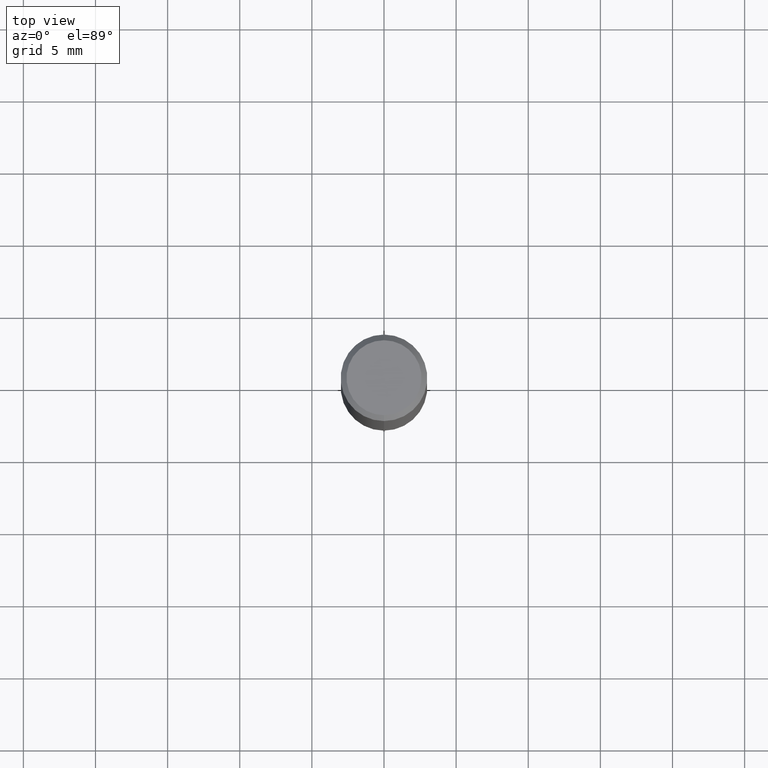
[diagram: clean part render]
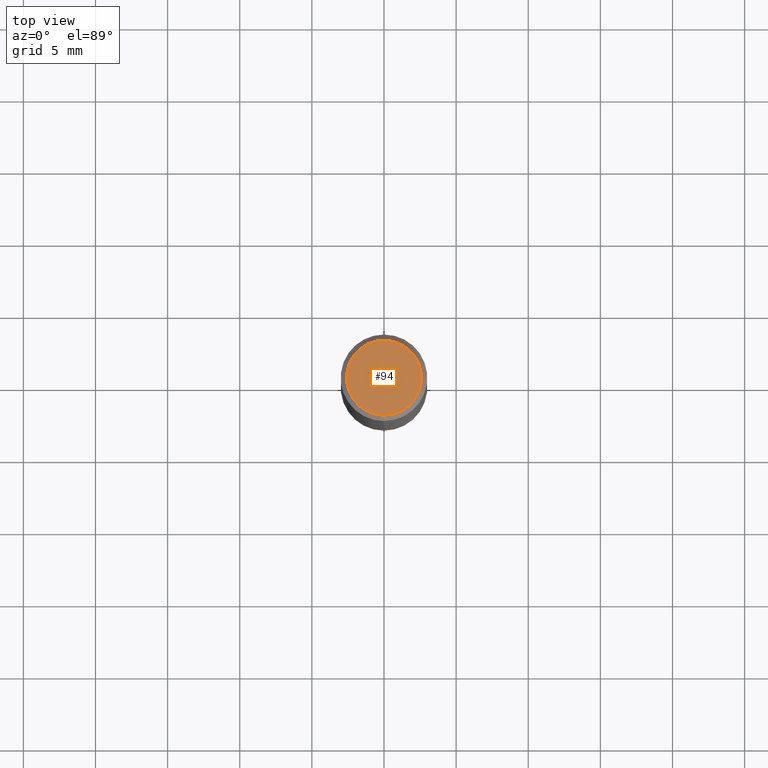
[diagram: same view with one face highlighted and labeled with its STEP entity id]
A machine part, top view. The second image highlights one B-rep face of the part: STEP entity #94.
In plain terms, the highlighted planar face has unit normal (-0, 0, 1).
Its self-contained STEP definition (entity closure, byte-faithful):
#94=ADVANCED_FACE('',(#216),#217,.T.);
#96=EDGE_CURVE('',#146,#104,#219,.T.);
#104=VERTEX_POINT('',#227);
#116=EDGE_CURVE('',#104,#146,#240,.T.);
#146=VERTEX_POINT('',#276);
#216=FACE_OUTER_BOUND('',#343,.T.);
#217=PLANE('',#344);
#219=CIRCLE('',#347,2.6);
#227=CARTESIAN_POINT('',(3.18397651993818E-016,-2.6,0.0));
#240=CIRCLE('',#373,2.6);
#276=CARTESIAN_POINT('',(0.0,2.6,0.0));
#343=EDGE_LOOP('',(#489,#490));
#344=AXIS2_PLACEMENT_3D('',#491,#492,#493);
#347=AXIS2_PLACEMENT_3D('',#494,#495,#496);
#373=AXIS2_PLACEMENT_3D('',#516,#517,#518);
#489=ORIENTED_EDGE('',*,*,#96,.F.);
#490=ORIENTED_EDGE('',*,*,#116,.F.);
#491=CARTESIAN_POINT('',(0.0,1.3,0.0));
#492=DIRECTION('',(-0.0,0.0,1.0));
#493=DIRECTION('',(0.0,-1.0,0.0));
#494=CARTESIAN_POINT('',(0.0,0.0,0.0));
#495=DIRECTION('',(0.0,0.0,-1.0));
#496=DIRECTION('',(0.0,1.0,0.0));
#516=CARTESIAN_POINT('',(0.0,0.0,0.0));
#517=DIRECTION('',(0.0,0.0,-1.0));
#518=DIRECTION('',(0.0,1.0,0.0));